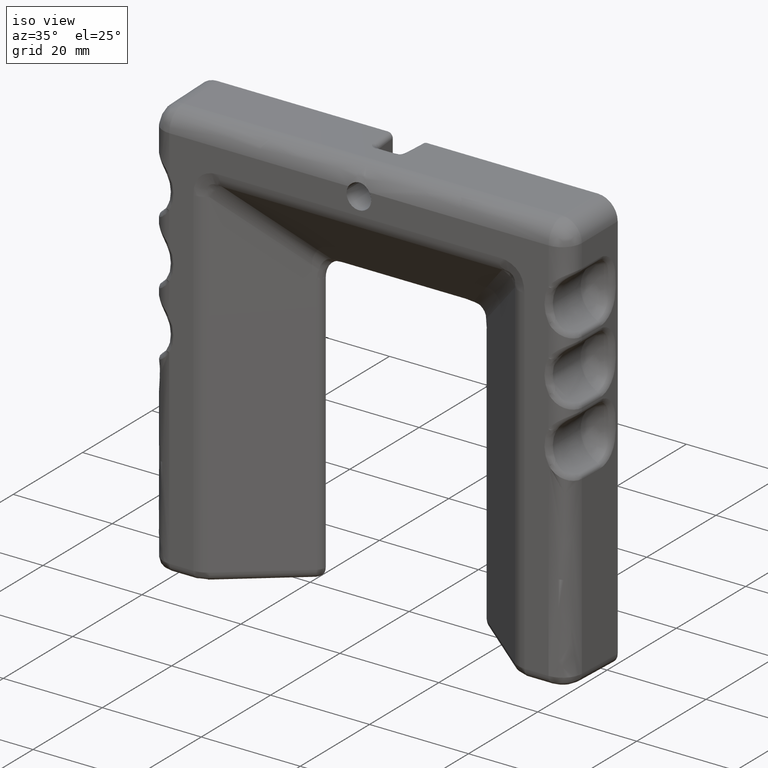
[diagram: clean part render]
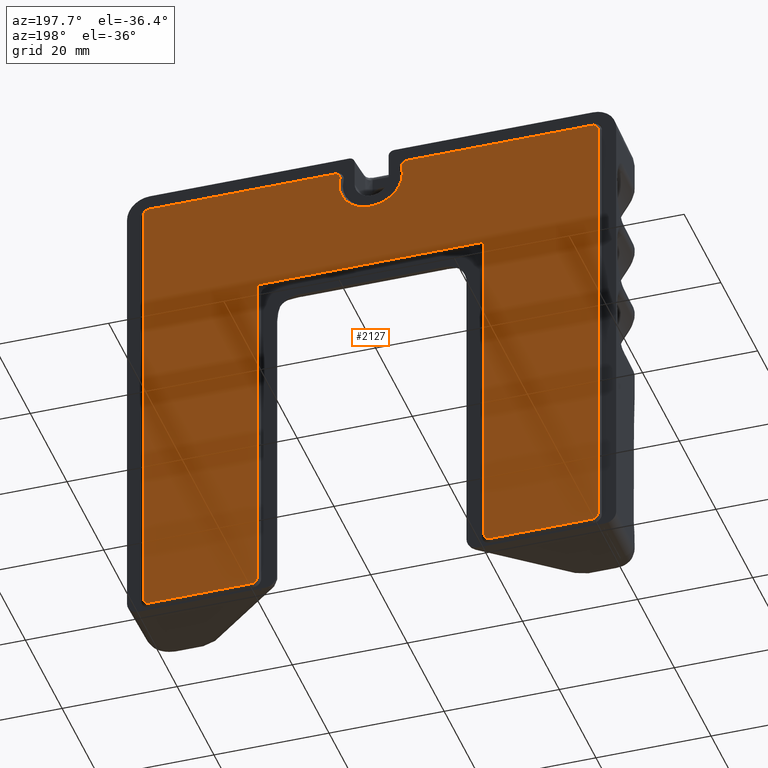
[diagram: tour spotlight — one face highlighted and labeled with its STEP entity id]
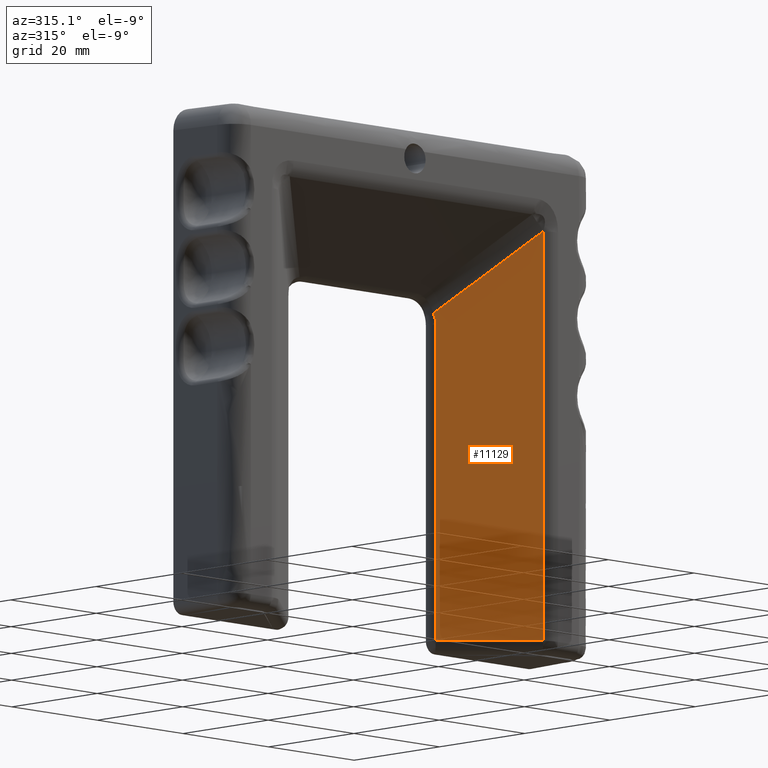
[diagram: tour spotlight — one face highlighted and labeled with its STEP entity id]
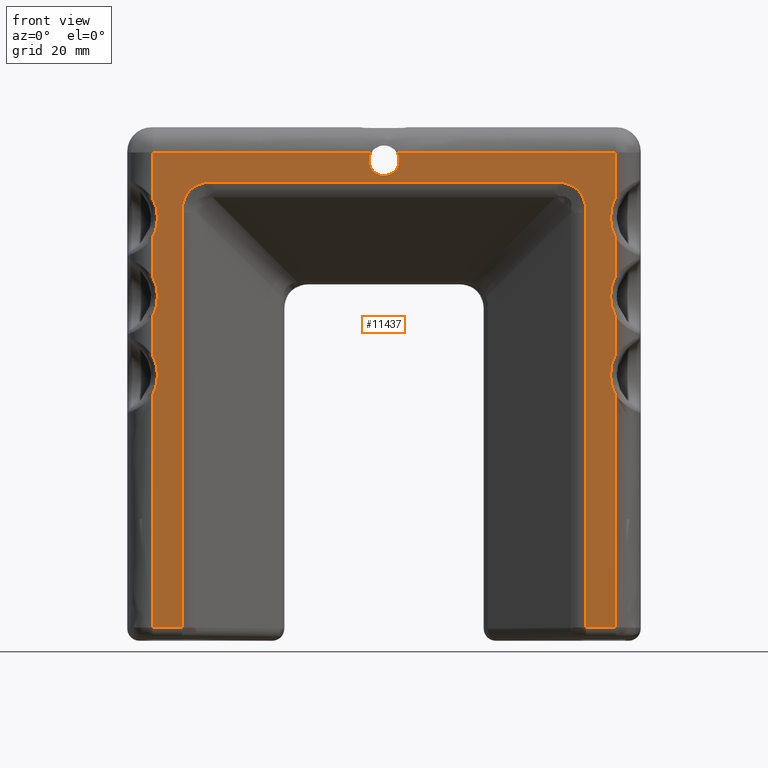
[diagram: tour spotlight — one face highlighted and labeled with its STEP entity id]
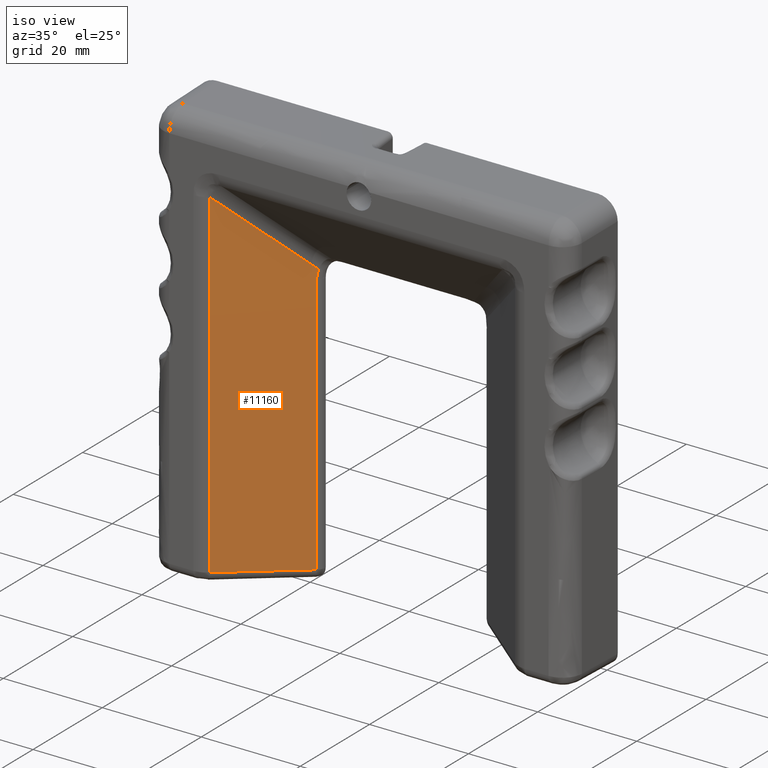
[diagram: tour spotlight — one face highlighted and labeled with its STEP entity id]
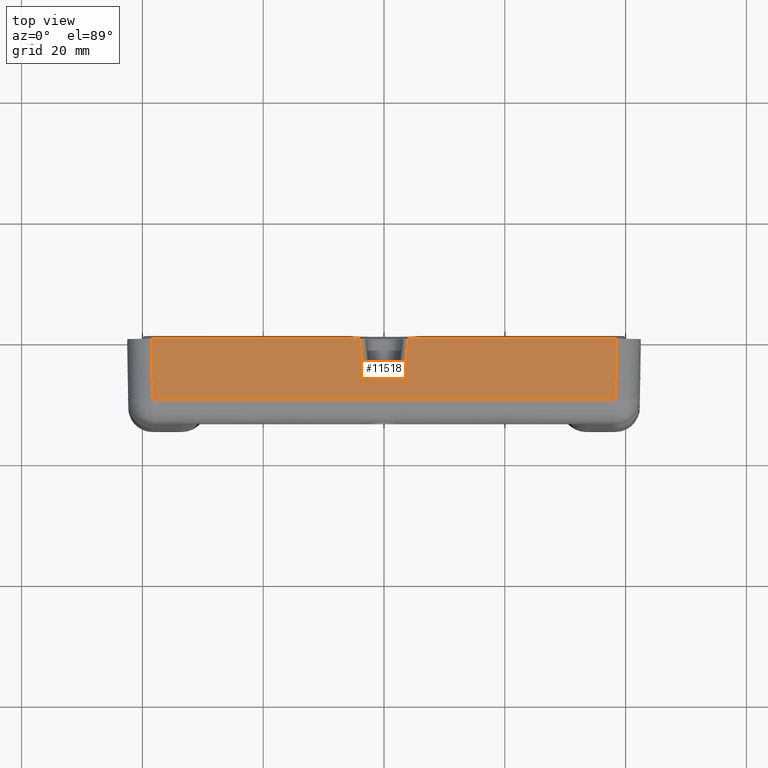
[diagram: tour spotlight — one face highlighted and labeled with its STEP entity id]
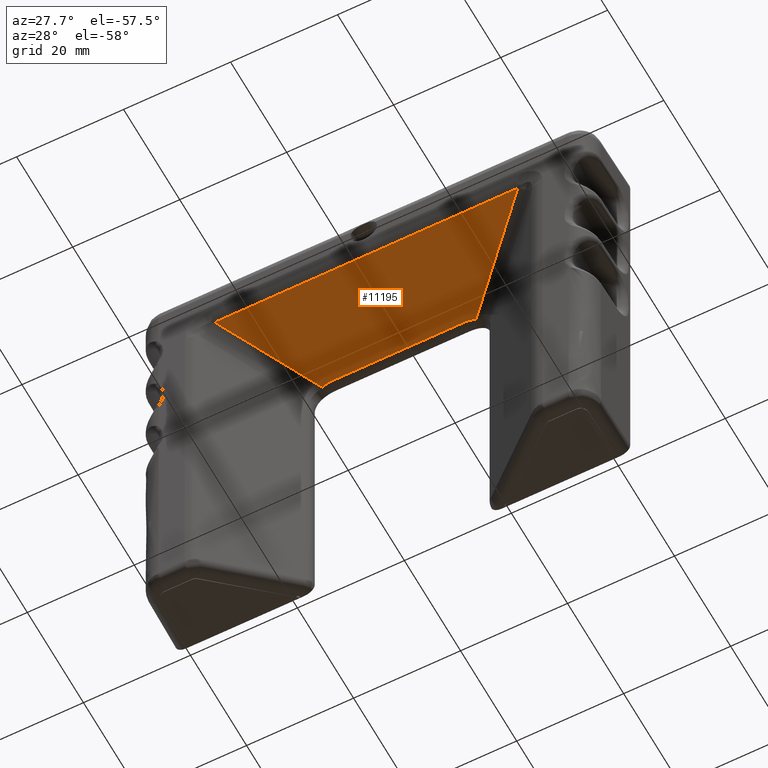
[diagram: tour spotlight — one face highlighted and labeled with its STEP entity id]
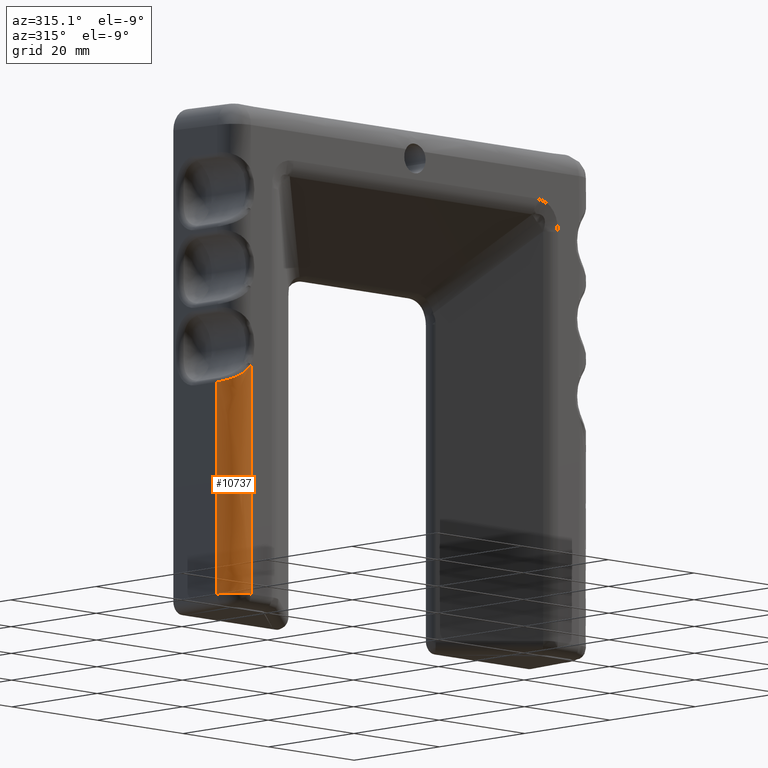
[diagram: tour spotlight — one face highlighted and labeled with its STEP entity id]
A machine part: a face-by-face anatomy tour. The part has 200 B-rep faces; the first image is the clean iso view, then the 7 largest visible faces are spotlighted one at a time (largest first), each with its STEP entity span.

Face 1 — auxiliary view, entity #2127. In plain terms, the highlighted face is a freeform B-spline surface patch.
Definition (entity closure, byte-faithful):
#1211=CARTESIAN_POINT('',(39.499999999949203,0.0,22.000000000103348));
#1212=VERTEX_POINT('',#1211);
#1223=CARTESIAN_POINT('',(38.499999999948997,0.0,23.000000000103348));
#1224=VERTEX_POINT('',#1223);
#1225=CARTESIAN_POINT('',(39.499999999949203,0.0,22.000000000103348));
#1226=CARTESIAN_POINT('',(39.500014327553203,0.0,22.081811047851389));
#1227=CARTESIAN_POINT('',(39.478805086073002,0.0,22.253607922560679));
#1228=CARTESIAN_POINT('',(39.371573700561200,0.0,22.521946860357730));
#1229=CARTESIAN_POINT('',(39.166178575398369,0.0,22.772277948874351));
#1230=CARTESIAN_POINT('',(38.859910467335133,0.0,22.955773641970801));
#1231=CARTESIAN_POINT('',(38.622733893674358,0.0,23.000105429510729));
#1232=CARTESIAN_POINT('',(38.499999999948997,0.0,23.000000000103348));
#1233=B_SPLINE_CURVE_WITH_KNOTS('',3,(#1225,#1226,#1227,#1228,#1229,#1230,#1231,#1232),.UNSPECIFIED.,.F.,.U.,(4,1,1,1,1,4),(0.000000217536349,0.245438941845420,0.515431442445490,0.859040607081495,1.202673225400131,1.570835744369436),.UNSPECIFIED.);
#1234=EDGE_CURVE('',#1212,#1224,#1233,.T.);
#1267=CARTESIAN_POINT('',(-39.499999999949537,0.0,22.000000000087901));
#1268=VERTEX_POINT('',#1267);
#1280=CARTESIAN_POINT('',(-38.499999999949701,0.0,23.000000000087901));
#1281=VERTEX_POINT('',#1280);
#1292=CARTESIAN_POINT('',(-38.499999999949701,0.0,23.000000000087901));
#1293=CARTESIAN_POINT('',(-38.630919264339461,0.0,23.000133886166161));
#1294=CARTESIAN_POINT('',(-38.851714781281913,0.0,22.955988613835778));
#1295=CARTESIAN_POINT('',(-39.101343153986349,0.0,22.810440243591099));
#1296=CARTESIAN_POINT('',(-39.273989335888608,0.0,22.646046551996371));
#1297=CARTESIAN_POINT('',(-39.443544225472102,0.0,22.392493208022191));
#1298=CARTESIAN_POINT('',(-39.500267898805667,0.0,22.155503843146789));
#1299=CARTESIAN_POINT('',(-39.499999999949537,0.0,22.000000000087901));
#1300=B_SPLINE_CURVE_WITH_KNOTS('',3,(#1292,#1293,#1294,#1295,#1296,#1297,#1298,#1299),.UNSPECIFIED.,.F.,.U.,(4,1,1,1,1,4),(0.000000217531629,0.392709373931819,0.662713451856214,0.859040607080540,1.104490639185552,1.570835744369193),.UNSPECIFIED.);
#1301=EDGE_CURVE('',#1281,#1268,#1300,.T.);
#1356=CARTESIAN_POINT('',(-19.698063139290749,0.0,3.198063139219500));
#1357=VERTEX_POINT('',#1356);
#1438=CARTESIAN_POINT('',(19.698063139290351,0.0,3.198063139219500));
#1439=VERTEX_POINT('',#1438);
#1486=CARTESIAN_POINT('',(-39.499999999949047,0.0,-56.999999999823800));
#1487=VERTEX_POINT('',#1486);
#1488=CARTESIAN_POINT('',(-39.499999999949047,0.0,-56.999999999823800));
#1489=CARTESIAN_POINT('',(-39.499999999949537,0.0,22.000000000087901));
#1490=QUASI_UNIFORM_CURVE('',1,(#1488,#1489),.UNSPECIFIED.,.F.,.U.);
#1491=EDGE_CURVE('',#1487,#1268,#1490,.T.);
#1529=CARTESIAN_POINT('',(-38.499999999949047,0.0,-57.999999999823807));
#1530=VERTEX_POINT('',#1529);
#1543=CARTESIAN_POINT('',(-38.499999999949047,0.0,-57.999999999823807));
#1544=CARTESIAN_POINT('',(-38.606359607924759,0.0,-58.000053413753072));
#1545=CARTESIAN_POINT('',(-38.827234840231753,0.0,-57.964445604183709));
#1546=CARTESIAN_POINT('',(-39.142157155291187,0.0,-57.796242727931272));
#1547=CARTESIAN_POINT('',(-39.349139805231829,0.0,-57.556259526731303));
#1548=CARTESIAN_POINT('',(-39.472305589893530,0.0,-57.278118864626883));
#1549=CARTESIAN_POINT('',(-39.500057954417358,0.0,-57.106363003410983));
#1550=CARTESIAN_POINT('',(-39.499999999949047,0.0,-56.999999999823800));
#1551=B_SPLINE_CURVE_WITH_KNOTS('',3,(#1543,#1544,#1545,#1546,#1547,#1548,#1549,#1550),.UNSPECIFIED.,.F.,.U.,(4,1,1,1,1,4),(0.000000217535812,0.319076578548942,0.662713451858859,1.055400931053086,1.251763114061747,1.570835744369257),.UNSPECIFIED.);
#1552=EDGE_CURVE('',#1530,#1487,#1551,.T.);
#1571=CARTESIAN_POINT('',(-20.698063139289250,0.0,-57.999999999864400));
#1572=VERTEX_POINT('',#1571);
#1585=CARTESIAN_POINT('',(-20.698063139289250,0.0,-57.999999999864400));
#1586=CARTESIAN_POINT('',(-38.499999999949047,0.0,-57.999999999823807));
#1587=QUASI_UNIFORM_CURVE('',1,(#1585,#1586),.UNSPECIFIED.,.F.,.U.);
#1588=EDGE_CURVE('',#1572,#1530,#1587,.T.);
#1610=CARTESIAN_POINT('',(-19.698063139290500,0.0,-56.999999999864400));
#1611=VERTEX_POINT('',#1610);
#1624=CARTESIAN_POINT('',(-19.698063139290500,0.0,-56.999999999864400));
#1625=CARTESIAN_POINT('',(-19.698049178047221,0.0,-57.081810563141431));
#1626=CARTESIAN_POINT('',(-19.720247226471500,0.0,-57.261806225028131));
#1627=CARTESIAN_POINT('',(-19.812027594672230,0.0,-57.483376357675347));
#1628=CARTESIAN_POINT('',(-19.970763278700250,0.0,-57.703027307884312));
#1629=CARTESIAN_POINT('',(-20.169688334946940,0.0,-57.866300081996783));
#1630=CARTESIAN_POINT('',(-20.436283111612539,0.0,-57.976644462458850));
#1631=CARTESIAN_POINT('',(-20.608068520382432,0.0,-58.000026670441052));
#1632=CARTESIAN_POINT('',(-20.698063139289250,0.0,-57.999999999864400));
#1633=B_SPLINE_CURVE_WITH_KNOTS('',3,(#1624,#1625,#1626,#1627,#1628,#1629,#1630,#1631,#1632),.UNSPECIFIED.,.F.,.U.,(4,1,1,1,1,1,4),(0.000000217537419,0.245438941846535,0.539988477027450,0.711792649435928,1.055400931052504,1.300852822237725,1.570835744368399),.UNSPECIFIED.);
#1634=EDGE_CURVE('',#1611,#1572,#1633,.T.);
#1653=CARTESIAN_POINT('',(-19.698063139290749,0.0,3.198063139219500));
#1654=CARTESIAN_POINT('',(-19.698063139290500,0.0,-56.999999999864400));
#1655=QUASI_UNIFORM_CURVE('',1,(#1653,#1654),.UNSPECIFIED.,.F.,.U.);
#1656=EDGE_CURVE('',#1357,#1611,#1655,.T.);
#1678=CARTESIAN_POINT('',(19.698063139290351,0.0,3.198063139219500));
#1679=CARTESIAN_POINT('',(-19.698063139290749,0.0,3.198063139219500));
#1680=QUASI_UNIFORM_CURVE('',1,(#1678,#1679),.UNSPECIFIED.,.F.,.U.);
#1681=EDGE_CURVE('',#1439,#1357,#1680,.T.);
#1705=CARTESIAN_POINT('',(19.698063139290401,0.0,-56.999999999864400));
#1706=VERTEX_POINT('',#1705);
#1707=CARTESIAN_POINT('',(19.698063139290401,0.0,-56.999999999864400));
#1708=CARTESIAN_POINT('',(19.698063139290351,0.0,3.198063139219500));
#1709=QUASI_UNIFORM_CURVE('',1,(#1707,#1708),.UNSPECIFIED.,.F.,.U.);
#1710=EDGE_CURVE('',#1706,#1439,#1709,.T.);
#1742=CARTESIAN_POINT('',(20.698063139290401,0.0,-57.999999999864400));
#1743=VERTEX_POINT('',#1742);
#1756=CARTESIAN_POINT('',(20.698063139290401,0.0,-57.999999999864400));
#1757=CARTESIAN_POINT('',(20.550751410295760,0.0,-58.000234125302612));
#1758=CARTESIAN_POINT('',(20.330065337361180,0.0,-57.950285986211547));
#1759=CARTESIAN_POINT('',(20.070805092839588,0.0,-57.790455778516993));
#1760=CARTESIAN_POINT('',(19.878383732609709,0.0,-57.598159567642277));
#1761=CARTESIAN_POINT('',(19.733609775763458,0.0,-57.327239002624673));
#1762=CARTESIAN_POINT('',(19.698014932644430,0.0,-57.106358039947906));
#1763=CARTESIAN_POINT('',(19.698063139290401,0.0,-56.999999999864400));
#1764=B_SPLINE_CURVE_WITH_KNOTS('',3,(#1756,#1757,#1758,#1759,#1760,#1761,#1762,#1763),.UNSPECIFIED.,.F.,.U.,(4,1,1,1,1,4),(0.000000217534374,0.441800759729257,0.662713451858429,0.908125003005442,1.251763114061433,1.570835744369271),.UNSPECIFIED.);
#1765=EDGE_CURVE('',#1743,#1706,#1764,.T.);
#1784=CARTESIAN_POINT('',(38.499999999947903,0.0,-57.999999999823807));
#1785=VERTEX_POINT('',#1784);
#1798=CARTESIAN_POINT('',(38.499999999947903,0.0,-57.999999999823807));
#1799=CARTESIAN_POINT('',(20.698063139290401,0.0,-57.999999999864400));
#1800=QUASI_UNIFORM_CURVE('',1,(#1798,#1799),.UNSPECIFIED.,.F.,.U.);
#1801=EDGE_CURVE('',#1785,#1743,#1800,.T.);
#1823=CARTESIAN_POINT('',(39.499999999949203,0.0,-56.999999999823800));
#1824=VERTEX_POINT('',#1823);
#1837=CARTESIAN_POINT('',(39.499999999949203,0.0,-56.999999999823800));
#1838=CARTESIAN_POINT('',(39.500146246036302,0.0,-57.130922819918851));
#1839=CARTESIAN_POINT('',(39.455973848660783,0.0,-57.351707529634567));
#1840=CARTESIAN_POINT('',(39.310440721513807,0.0,-57.601339480064880));
#1841=CARTESIAN_POINT('',(39.123407628207353,0.0,-57.797873438428233));
#1842=CARTESIAN_POINT('',(38.859922444539741,0.0,-57.955775563694118));
#1843=CARTESIAN_POINT('',(38.622732273899793,0.0,-58.000104967938121));
#1844=CARTESIAN_POINT('',(38.499999999947903,0.0,-57.999999999823807));
#1845=B_SPLINE_CURVE_WITH_KNOTS('',3,(#1837,#1838,#1839,#1840,#1841,#1842,#1843,#1844),.UNSPECIFIED.,.F.,.U.,(4,1,1,1,1,4),(0.000000217537676,0.392709373936844,0.662713451860106,0.859040607083587,1.202673225401559,1.570835744370094),.UNSPECIFIED.);
#1846=EDGE_CURVE('',#1824,#1785,#1845,.T.);
#1865=CARTESIAN_POINT('',(39.499999999949203,0.0,22.000000000103348));
#1866=CARTESIAN_POINT('',(39.499999999949203,0.0,-56.999999999823800));
#1867=QUASI_UNIFORM_CURVE('',1,(#1865,#1866),.UNSPECIFIED.,.F.,.U.);
#1868=EDGE_CURVE('',#1212,#1824,#1867,.T.);
#1890=CARTESIAN_POINT('',(-6.324555320316181,0.0,23.000000000094200));
#1891=VERTEX_POINT('',#1890);
#1892=CARTESIAN_POINT('',(-38.499999999949701,0.0,23.000000000087901));
#1893=CARTESIAN_POINT('',(-6.324555320316181,0.0,23.000000000094200));
#1894=QUASI_UNIFORM_CURVE('',1,(#1892,#1893),.UNSPECIFIED.,.F.,.U.);
#1895=EDGE_CURVE('',#1281,#1891,#1894,.T.);
#1929=CARTESIAN_POINT('',(-5.351546809498061,0.0,21.769230769311399));
#1930=VERTEX_POINT('',#1929);
#1941=CARTESIAN_POINT('',(-6.324555320316181,0.0,23.000000000094200));
#1942=CARTESIAN_POINT('',(-6.211826171420850,0.0,23.000048425445751));
#1943=CARTESIAN_POINT('',(-5.967590458473361,0.0,22.958335965005070));
#1944=CARTESIAN_POINT('',(-5.646269813299475,0.0,22.767796751177851));
#1945=CARTESIAN_POINT('',(-5.436908595105568,0.0,22.494968295239740));
#1946=CARTESIAN_POINT('',(-5.315279665153033,0.0,22.156252026992689));
#1947=CARTESIAN_POINT('',(-5.316583850338386,0.0,21.915480141732079));
#1948=CARTESIAN_POINT('',(-5.351546809498061,0.0,21.769230769311399));
#1949=B_SPLINE_CURVE_WITH_KNOTS('',3,(#1941,#1942,#1943,#1944,#1945,#1946,#1947,#1948),.UNSPECIFIED.,.F.,.U.,(4,1,1,1,1,4),(0.000000280677304,0.338189973946883,0.732789879649531,1.099135193399012,1.352793226430628,1.803724176426685),.UNSPECIFIED.);
#1950=EDGE_CURVE('',#1891,#1930,#1949,.T.);
#1980=CARTESIAN_POINT('',(5.351546809497520,0.0,21.769230769313548));
#1981=VERTEX_POINT('',#1980);
#1992=CARTESIAN_POINT('',(-4.243461E-009,0.0,15.000000000006150));
#1993=VERTEX_POINT('',#1992);
#1994=CARTESIAN_POINT('',(-4.243461E-009,0.0,15.000000000006150));
#1995=CARTESIAN_POINT('',(0.542549153159478,0.0,14.999736168811859));
#1996=CARTESIAN_POINT('',(1.317388490094675,0.0,15.115649750206529));
#1997=CARTESIAN_POINT('',(2.407884364797114,0.0,15.525280062039080));
#1998=CARTESIAN_POINT('',(3.148233418671422,0.0,15.957487955651720));
#1999=CARTESIAN_POINT('',(3.921975145714269,0.0,16.605960269699938));
#2000=CARTESIAN_POINT('',(4.645303538656455,0.0,17.457207586629291));
#2001=CARTESIAN_POINT('',(5.229325760176251,0.0,18.622336969050089));
#2002=CARTESIAN_POINT('',(5.465415905184914,0.0,19.688450491311809));
#2003=CARTESIAN_POINT('',(5.523296121511068,0.0,20.721451038629120));
#2004=CARTESIAN_POINT('',(5.453011017315941,0.0,21.341925091128591));
#2005=CARTESIAN_POINT('',(5.351546809497520,0.0,21.769230769313548));
#2006=B_SPLINE_CURVE_WITH_KNOTS('',3,(#1994,#1995,#1996,#1997,#1998,#1999,#2000,#2001,#2002,#2003,#2004,#2005),.UNSPECIFIED.,.F.,.U.,(4,1,1,1,1,1,1,1,1,4),(0.000000107662045,1.627535778394842,2.325053548120486,3.487601396353792,4.185127801099133,5.347605900044380,6.820151009355872,8.060204311036515,8.602708020712424,9.920236848795172),.UNSPECIFIED.);
#2007=EDGE_CURVE('',#1993,#1981,#2006,.T.);
#2009=CARTESIAN_POINT('',(-5.351546809498061,0.0,21.769230769311399));
#2010=CARTESIAN_POINT('',(-5.459005049810857,0.0,21.316793788603039));
#2011=CARTESIAN_POINT('',(-5.527673852305521,0.0,20.669413160075980));
#2012=CARTESIAN_POINT('',(-5.455243069737300,0.0,19.637328692886161));
#2013=CARTESIAN_POINT('',(-5.217615207534649,0.0,18.599031861151261));
#2014=CARTESIAN_POINT('',(-4.703723141303765,0.0,17.573730978173462));
#2015=CARTESIAN_POINT('',(-4.093238389735405,0.0,16.801828834717849));
#2016=CARTESIAN_POINT('',(-3.497438440928780,0.0,16.226363557895748));
#2017=CARTESIAN_POINT('',(-2.860848377791266,0.0,15.778642565720141));
#2018=CARTESIAN_POINT('',(-2.074502910940098,0.0,15.384122693657480));
#2019=CARTESIAN_POINT('',(-1.162488683740107,0.0,15.084847439245779));
#2020=CARTESIAN_POINT('',(-0.413338829841092,0.0,14.999931016622529));
#2021=CARTESIAN_POINT('',(-4.243461E-009,0.0,15.000000000006150));
#2022=B_SPLINE_CURVE_WITH_KNOTS('',3,(#2009,#2010,#2011,#2012,#2013,#2014,#2015,#2016,#2017,#2018,#2019,#2020,#2021),.UNSPECIFIED.,.F.,.U.,(4,1,1,1,1,1,1,1,1,1,4),(0.000000107662730,1.395014002534065,1.937538343063287,3.100084990349409,4.572632568355017,5.347605895469305,6.045117706993319,7.052668109039573,7.672687751570344,8.680220535127720,9.920236840305801),.UNSPECIFIED.);
#2023=EDGE_CURVE('',#1930,#1993,#2022,.T.);
#2048=CARTESIAN_POINT('',(6.324555320315071,0.0,23.000000000096900));
#2049=VERTEX_POINT('',#2048);
#2060=CARTESIAN_POINT('',(5.351546809497520,0.0,21.769230769313548));
#2061=CARTESIAN_POINT('',(5.325469654651167,0.0,21.878901524186460));
#2062=CARTESIAN_POINT('',(5.309734041300523,0.0,22.126189211225419));
#2063=CARTESIAN_POINT('',(5.418104893513546,0.0,22.473612972730368));
#2064=CARTESIAN_POINT('',(5.642764280626313,0.0,22.757662511551739));
#2065=CARTESIAN_POINT('',(5.948890045862477,0.0,22.951104911427439));
#2066=CARTESIAN_POINT('',(6.193013509761522,0.0,23.000137731472019));
#2067=CARTESIAN_POINT('',(6.324555320315071,0.0,23.000000000096900));
#2068=B_SPLINE_CURVE_WITH_KNOTS('',3,(#2060,#2061,#2062,#2063,#2064,#2065,#2066,#2067),.UNSPECIFIED.,.F.,.U.,(4,1,1,1,1,4),(0.000000280677316,0.338189973947018,0.732789879649797,1.070935543096898,1.409161141713209,1.803724176426559),.UNSPECIFIED.);
#2069=EDGE_CURVE('',#1981,#2049,#2068,.T.);
#2092=CARTESIAN_POINT('',(6.324555320315071,0.0,23.000000000096900));
#2093=CARTESIAN_POINT('',(38.499999999948997,0.0,23.000000000103348));
#2094=QUASI_UNIFORM_CURVE('',1,(#2092,#2093),.UNSPECIFIED.,.F.,.U.);
#2095=EDGE_CURVE('',#2049,#1224,#2094,.T.);
#2101=CARTESIAN_POINT('',(-43.446049846827158,0.0,27.045949843108019));
#2102=CARTESIAN_POINT('',(43.446051965771943,0.0,27.045949843108019));
#2103=CARTESIAN_POINT('',(-43.446049846827158,0.0,-62.045952015458369));
#2104=CARTESIAN_POINT('',(43.446051965771943,0.0,-62.045952015458369));
#2105=B_SPLINE_SURFACE_WITH_KNOTS('',1,1,((#2101,#2103),(#2102,#2104)),.UNSPECIFIED.,.F.,.F.,.U.,(2,2),(2,2),(0.0,86.892101812599094),(0.0,89.091901858566388),.UNSPECIFIED.);
#2106=ORIENTED_EDGE('',*,*,#1301,.F.);
#2107=ORIENTED_EDGE('',*,*,#1895,.T.);
#2108=ORIENTED_EDGE('',*,*,#1950,.T.);
#2109=ORIENTED_EDGE('',*,*,#2023,.T.);
#2110=ORIENTED_EDGE('',*,*,#2007,.T.);
#2111=ORIENTED_EDGE('',*,*,#2069,.T.);
#2112=ORIENTED_EDGE('',*,*,#2095,.T.);
#2113=ORIENTED_EDGE('',*,*,#1234,.F.);
#2114=ORIENTED_EDGE('',*,*,#1868,.T.);
#2115=ORIENTED_EDGE('',*,*,#1846,.T.);
#2116=ORIENTED_EDGE('',*,*,#1801,.T.);
#2117=ORIENTED_EDGE('',*,*,#1765,.T.);
#2118=ORIENTED_EDGE('',*,*,#1710,.T.);
#2119=ORIENTED_EDGE('',*,*,#1681,.T.);
#2120=ORIENTED_EDGE('',*,*,#1656,.T.);
#2121=ORIENTED_EDGE('',*,*,#1634,.T.);
#2122=ORIENTED_EDGE('',*,*,#1588,.T.);
#2123=ORIENTED_EDGE('',*,*,#1552,.T.);
#2124=ORIENTED_EDGE('',*,*,#1491,.T.);
#2125=EDGE_LOOP('',(#2106,#2107,#2108,#2109,#2110,#2111,#2112,#2113,#2114,#2115,#2116,#2117,#2118,#2119,#2120,#2121,#2122,#2123,#2124));
#2126=FACE_OUTER_BOUND('',#2125,.T.);
#2127=ADVANCED_FACE('',(#2126),#2105,.T.);

Face 2 — auxiliary view, entity #11129. In plain terms, the highlighted face is a freeform B-spline surface patch.
Definition (entity closure, byte-faithful):
#10139=CARTESIAN_POINT('',(16.921956825164450,-1.853899272678195,-2.148492222790370));
#10140=VERTEX_POINT('',#10139);
#10154=CARTESIAN_POINT('',(30.884913513432998,-13.564766172503820,11.814464465478320));
#10155=VERTEX_POINT('',#10154);
#10156=CARTESIAN_POINT('',(30.884913513432998,-13.564766172503820,11.814464465478320));
#10157=CARTESIAN_POINT('',(16.921956825164450,-1.853899272678195,-2.148492222790370));
#10158=QUASI_UNIFORM_CURVE('',1,(#10156,#10157),.UNSPECIFIED.,.F.,.U.);
#10159=EDGE_CURVE('',#10155,#10140,#10158,.T.);
#10362=CARTESIAN_POINT('',(30.884913513432998,-13.564766172503820,-56.798396848276703));
#10363=VERTEX_POINT('',#10362);
#10364=CARTESIAN_POINT('',(30.884913513432998,-13.564766172503820,-56.798396848276703));
#10365=CARTESIAN_POINT('',(30.884913513432998,-13.564766172503820,11.814464465478320));
#10366=QUASI_UNIFORM_CURVE('',1,(#10364,#10365),.UNSPECIFIED.,.F.,.U.);
#10367=EDGE_CURVE('',#10363,#10155,#10366,.T.);
#11098=CARTESIAN_POINT('',(16.224507165648340,-1.268941493729852,-60.435732644510367));
#11099=CARTESIAN_POINT('',(31.582363547464769,-14.149724265562121,-60.435732644510367));
#11100=CARTESIAN_POINT('',(16.224507165648340,-1.268941493729852,15.251674951856071));
#11101=CARTESIAN_POINT('',(31.582363547464769,-14.149724265562121,15.251674951856071));
#11102=B_SPLINE_SURFACE_WITH_KNOTS('',1,1,((#11098,#11100),(#11099,#11101)),.UNSPECIFIED.,.F.,.F.,.U.,(2,2),(2,2),(0.0,20.044408633322920),(0.0,75.687407596366427),.UNSPECIFIED.);
#11103=CARTESIAN_POINT('',(17.214775476115900,-2.099489108959800,-4.0));
#11104=VERTEX_POINT('',#11103);
#11105=CARTESIAN_POINT('',(16.921956825164450,-1.853899272678195,-2.148492222790370));
#11106=CARTESIAN_POINT('',(17.011663208738369,-1.929136884707846,-2.421875494973927));
#11107=CARTESIAN_POINT('',(17.160723831090831,-2.054155471196926,-3.028712454710562));
#11108=CARTESIAN_POINT('',(17.214156632368919,-2.098970078720351,-3.662951840588014));
#11109=CARTESIAN_POINT('',(17.214775476115900,-2.099489108959800,-4.0));
#11110=B_SPLINE_CURVE_WITH_KNOTS('',3,(#11105,#11106,#11107,#11108,#11109),.UNSPECIFIED.,.F.,.U.,(4,1,4),(7.351955E-009,0.892198098956894,1.903339642938170),.UNSPECIFIED.);
#11111=EDGE_CURVE('',#10140,#11104,#11110,.T.);
#11112=ORIENTED_EDGE('',*,*,#11111,.T.);
#11113=CARTESIAN_POINT('',(17.214775476115900,-2.099489108959805,-56.998524003840807));
#11114=VERTEX_POINT('',#11113);
#11115=CARTESIAN_POINT('',(17.214775476115900,-2.099489108959800,-4.0));
#11116=CARTESIAN_POINT('',(17.214775476115900,-2.099489108959805,-56.998524003840807));
#11117=QUASI_UNIFORM_CURVE('',1,(#11115,#11116),.UNSPECIFIED.,.F.,.U.);
#11118=EDGE_CURVE('',#11104,#11114,#11117,.T.);
#11119=ORIENTED_EDGE('',*,*,#11118,.T.);
#11120=CARTESIAN_POINT('',(17.214775476115900,-2.099489108959805,-56.998524003840807));
#11121=CARTESIAN_POINT('',(30.884913513432998,-13.564766172503820,-56.798396848276703));
#11122=QUASI_UNIFORM_CURVE('',1,(#11120,#11121),.UNSPECIFIED.,.F.,.U.);
#11123=EDGE_CURVE('',#11114,#10363,#11122,.T.);
#11124=ORIENTED_EDGE('',*,*,#11123,.T.);
#11125=ORIENTED_EDGE('',*,*,#10367,.T.);
#11126=ORIENTED_EDGE('',*,*,#10159,.T.);
#11127=EDGE_LOOP('',(#11112,#11119,#11124,#11125,#11126));
#11128=FACE_OUTER_BOUND('',#11127,.T.);
#11129=ADVANCED_FACE('',(#11128),#11102,.T.);

Face 3 — front view, entity #11437. In plain terms, the highlighted face is a freeform B-spline surface patch.
Definition (entity closure, byte-faithful):
#2148=CARTESIAN_POINT('',(-2.120094071557265,-14.499999999999179,21.824840038557149));
#2149=VERTEX_POINT('',#2148);
#2150=CARTESIAN_POINT('',(-2.440729352231159,-14.500000000000179,21.041147141879119));
#2151=VERTEX_POINT('',#2150);
#2152=CARTESIAN_POINT('',(-2.120094071557265,-14.499999999999179,21.824840038557149));
#2153=CARTESIAN_POINT('',(-2.270518364014504,-14.499999999999490,21.584377952822891));
#2154=CARTESIAN_POINT('',(-2.379427741991659,-14.499999999999870,21.318071767937571));
#2155=CARTESIAN_POINT('',(-2.440729352231159,-14.500000000000179,21.041147141879119));
#2156=B_SPLINE_CURVE_WITH_KNOTS('',3,(#2152,#2153,#2154,#2155),.UNSPECIFIED.,.F.,.U.,(4,4),(6.564743E-009,0.850864154771116),.UNSPECIFIED.);
#2157=EDGE_CURVE('',#2149,#2151,#2156,.T.);
#2220=CARTESIAN_POINT('',(2.440729312936336,-14.499999999999270,19.958852680902321));
#2221=VERTEX_POINT('',#2220);
#2227=CARTESIAN_POINT('',(2.120094071557220,-14.499999999999259,21.824840038557149));
#2228=VERTEX_POINT('',#2227);
#2229=CARTESIAN_POINT('',(2.440729312936336,-14.499999999999270,19.958852680902321));
#2230=CARTESIAN_POINT('',(2.506669392403729,-14.499999999999281,20.255053512313459));
#2231=CARTESIAN_POINT('',(2.521878366155275,-14.499999999999289,20.686555775981532));
#2232=CARTESIAN_POINT('',(2.380990301773809,-14.499999999999250,21.320085644310190));
#2233=CARTESIAN_POINT('',(2.238075635040961,-14.499999999999281,21.636185841352962));
#2234=CARTESIAN_POINT('',(2.120094071557220,-14.499999999999259,21.824840038557149));
#2235=B_SPLINE_CURVE_WITH_KNOTS('',3,(#2229,#2230,#2231,#2232,#2233,#2234),.UNSPECIFIED.,.F.,.U.,(4,1,1,4),(0.000000025826808,0.910234650108613,1.274316033798662,1.941825286214876),.UNSPECIFIED.);
#2236=EDGE_CURVE('',#2221,#2228,#2235,.T.);
#2296=CARTESIAN_POINT('',(-0.000000038150194,-14.499999999999179,18.000000000006150));
#2297=VERTEX_POINT('',#2296);
#2298=CARTESIAN_POINT('',(-2.440729352231159,-14.500000000000179,21.041147141879119));
#2299=CARTESIAN_POINT('',(-2.501400727935301,-14.500000000000229,20.768262526627431));
#2300=CARTESIAN_POINT('',(-2.526151639254186,-14.500000000000229,20.272816592479430));
#2301=CARTESIAN_POINT('',(-2.362244527833370,-14.500000000000121,19.611926685680331));
#2302=CARTESIAN_POINT('',(-2.064249580611014,-14.500000000000020,19.040321992712780));
#2303=CARTESIAN_POINT('',(-1.643899068603165,-14.499999999999901,18.579235160076529));
#2304=CARTESIAN_POINT('',(-1.102232852297910,-14.499999999999430,18.229750810021979));
#2305=CARTESIAN_POINT('',(-0.559048377555134,-14.499999999999870,18.040416603641749));
#2306=CARTESIAN_POINT('',(-0.174698016174856,-14.499999999999320,17.999984929908120));
#2307=CARTESIAN_POINT('',(-0.000000038150194,-14.499999999999179,18.000000000006150));
#2308=B_SPLINE_CURVE_WITH_KNOTS('',3,(#2298,#2299,#2300,#2301,#2302,#2303,#2304,#2305,#2306,#2307),.UNSPECIFIED.,.F.,.U.,(4,1,1,1,1,1,1,4),(0.000000177267074,0.838589058923010,1.467544970531041,2.026631960704683,2.760344862816102,3.319427215000527,3.948392987636224,4.472491844759690),.UNSPECIFIED.);
#2309=EDGE_CURVE('',#2151,#2297,#2308,.T.);
#2311=CARTESIAN_POINT('',(-0.000000038150194,-14.499999999999179,18.000000000006150));
#2312=CARTESIAN_POINT('',(0.193730905306583,-14.499999999999190,17.999974434500690));
#2313=CARTESIAN_POINT('',(0.616434418652227,-14.499999999999210,18.049319567074502));
#2314=CARTESIAN_POINT('',(1.163433773060862,-14.499999999999220,18.261406628624808));
#2315=CARTESIAN_POINT('',(1.688289328572304,-14.499999999999330,18.622254813075191));
#2316=CARTESIAN_POINT('',(2.160857024310872,-14.499999999999091,19.155129301857659));
#2317=CARTESIAN_POINT('',(2.376136391304419,-14.499999999999231,19.666461007755490));
#2318=CARTESIAN_POINT('',(2.440729312936336,-14.499999999999270,19.958852680902321));
#2319=B_SPLINE_CURVE_WITH_KNOTS('',3,(#2311,#2312,#2313,#2314,#2315,#2316,#2317,#2318),.UNSPECIFIED.,.F.,.U.,(4,1,1,1,1,4),(0.000000085418228,0.581210409623226,1.268099421292803,1.743616806165720,2.483352263343006,3.381588930817704),.UNSPECIFIED.);
#2320=EDGE_CURVE('',#2297,#2221,#2319,.T.);
#5139=CARTESIAN_POINT('',(38.324840038503353,-14.499999999999259,14.296573895380160));
#5140=VERTEX_POINT('',#5139);
#5249=CARTESIAN_POINT('',(38.324840038503353,-14.499999999999259,7.703426103730160));
#5250=VERTEX_POINT('',#5249);
#5264=CARTESIAN_POINT('',(38.324840038503353,-14.499999999999259,7.703426103730160));
#5265=CARTESIAN_POINT('',(38.038427177145437,-14.499999999999250,8.239569419655252));
#5266=CARTESIAN_POINT('',(37.619342061120733,-14.499999999999259,9.353287344222713));
#5267=CARTESIAN_POINT('',(37.445808366677632,-14.499999999999289,10.965054846598800));
#5268=CARTESIAN_POINT('',(37.626522934780468,-14.499999999999270,12.642992042879140));
#5269=CARTESIAN_POINT('',(38.004623369947339,-14.499999999999281,13.697386452039201));
#5270=CARTESIAN_POINT('',(38.324840038503353,-14.499999999999259,14.296573895380160));
#5271=B_SPLINE_CURVE_WITH_KNOTS('',3,(#5264,#5265,#5266,#5267,#5268,#5269,#5270),.UNSPECIFIED.,.F.,.U.,(4,1,1,1,4),(9.759930E-009,1.823525708499233,3.539784280846940,4.826979443148792,6.865037815371405),.UNSPECIFIED.);
#5272=EDGE_CURVE('',#5250,#5140,#5271,.T.);
#5632=CARTESIAN_POINT('',(38.324840038503353,-14.499999999999259,1.296573895380970));
#5633=VERTEX_POINT('',#5632);
#5705=CARTESIAN_POINT('',(38.324840038503353,-14.499999999999259,-5.296573896269040));
#5706=VERTEX_POINT('',#5705);
#5719=CARTESIAN_POINT('',(38.324840038503353,-14.499999999999259,-5.296573896269040));
#5720=CARTESIAN_POINT('',(38.038405626269707,-14.499999999999270,-4.760436069416929));
#5721=CARTESIAN_POINT('',(37.670244013162318,-14.499999999999231,-3.781693999583320));
#5722=CARTESIAN_POINT('',(37.457971821259662,-14.499999999999311,-2.252364062843530));
#5723=CARTESIAN_POINT('',(37.532862684589077,-14.499999999999250,-1.031993592761771));
#5724=CARTESIAN_POINT('',(37.818580818475652,-14.499999999999281,0.188812713181427));
#5725=CARTESIAN_POINT('',(38.105884634459912,-14.499999999999250,0.886553258423889));
#5726=CARTESIAN_POINT('',(38.324840038503353,-14.499999999999259,1.296573895380970));
#5727=B_SPLINE_CURVE_WITH_KNOTS('',3,(#5719,#5720,#5721,#5722,#5723,#5724,#5725,#5726),.UNSPECIFIED.,.F.,.U.,(4,1,1,1,1,4),(9.760099E-009,1.823525708499283,3.110722037296486,4.612446580856379,5.470577284788320,6.865037815371418),.UNSPECIFIED.);
#5728=EDGE_CURVE('',#5706,#5633,#5727,.T.);
#7005=CARTESIAN_POINT('',(38.324840038503353,-14.499999999999259,-11.703426104619860));
#7006=VERTEX_POINT('',#7005);
#7115=CARTESIAN_POINT('',(38.324840038503353,-14.499999999999259,-18.296573896269901));
#7116=VERTEX_POINT('',#7115);
#7130=CARTESIAN_POINT('',(38.324840038503353,-14.499999999999259,-18.296573896269901));
#7131=CARTESIAN_POINT('',(38.105880071832942,-14.499999999999250,-17.886553891125381));
#7132=CARTESIAN_POINT('',(37.818581247469751,-14.499999999999281,-17.188812322883692));
#7133=CARTESIAN_POINT('',(37.565568746577178,-14.499999999999250,-16.107522643164430));
#7134=CARTESIAN_POINT('',(37.466762593669650,-14.499999999999250,-15.036261880454511));
#7135=CARTESIAN_POINT('',(37.549228528555624,-14.499999999999250,-13.962237323648971));
#7136=CARTESIAN_POINT('',(37.818573221362051,-14.499999999999281,-12.811186047926860));
#7137=CARTESIAN_POINT('',(38.105884264774012,-14.499999999999250,-12.113446926997470));
#7138=CARTESIAN_POINT('',(38.324840038503353,-14.499999999999259,-11.703426104619860));
#7139=B_SPLINE_CURVE_WITH_KNOTS('',3,(#7130,#7131,#7132,#7133,#7134,#7135,#7136,#7137,#7138),.UNSPECIFIED.,.F.,.U.,(4,1,1,1,1,1,4),(9.761676E-009,1.394460540344373,2.252591244276101,3.325253544285148,4.612446580856698,5.470577284788496,6.865037815371446),.UNSPECIFIED.);
#7140=EDGE_CURVE('',#7116,#7006,#7139,.T.);
#7501=CARTESIAN_POINT('',(-38.324840038437053,-14.499999999999259,7.703426103830350));
#7502=VERTEX_POINT('',#7501);
#7576=CARTESIAN_POINT('',(-38.324840038437053,-14.499999999999259,14.296573895232020));
#7577=VERTEX_POINT('',#7576);
#7590=CARTESIAN_POINT('',(-38.324840038437053,-14.499999999999259,14.296573895232020));
#7591=CARTESIAN_POINT('',(-38.105884437018680,-14.499999999999270,13.886553316115160));
#7592=CARTESIAN_POINT('',(-37.818581071367859,-14.499999999999259,13.188812938068050));
#7593=CARTESIAN_POINT('',(-37.532875193067170,-14.499999999999250,11.968007646171190));
#7594=CARTESIAN_POINT('',(-37.449072764619750,-14.499999999999311,10.604047651218851));
#7595=CARTESIAN_POINT('',(-37.708964880863810,-14.499999999999250,9.076959748134277));
#7596=CARTESIAN_POINT('',(-38.105909649571998,-14.499999999999250,8.113450884663115));
#7597=CARTESIAN_POINT('',(-38.324840038437053,-14.499999999999259,7.703426103830350));
#7598=B_SPLINE_CURVE_WITH_KNOTS('',3,(#7590,#7591,#7592,#7593,#7594,#7595,#7596,#7597),.UNSPECIFIED.,.F.,.U.,(4,1,1,1,1,4),(9.761509E-009,1.394460540286977,2.252591244183507,3.754315787681429,5.470577284564165,6.865037815089892),.UNSPECIFIED.);
#7599=EDGE_CURVE('',#7577,#7502,#7598,.T.);
#8910=CARTESIAN_POINT('',(-38.324840038437053,-14.499999999999259,-5.296573896168559));
#8911=VERTEX_POINT('',#8910);
#9095=CARTESIAN_POINT('',(-38.324840038437053,-14.499999999999259,1.296573895232820));
#9096=VERTEX_POINT('',#9095);
#9168=CARTESIAN_POINT('',(-38.324840038437053,-14.499999999999259,1.296573895232820));
#9169=CARTESIAN_POINT('',(-38.038427224964742,-14.499999999999281,0.760432269937283));
#9170=CARTESIAN_POINT('',(-37.644796943084820,-14.499999999999231,-0.285797393049973));
#9171=CARTESIAN_POINT('',(-37.438068908274587,-14.499999999999281,-1.963299550246381));
#9172=CARTESIAN_POINT('',(-37.619349126935759,-14.499999999999259,-3.646716980022377));
#9173=CARTESIAN_POINT('',(-38.038425655438509,-14.499999999999250,-4.760429810719289));
#9174=CARTESIAN_POINT('',(-38.324840038437053,-14.499999999999259,-5.296573896168559));
#9175=B_SPLINE_CURVE_WITH_KNOTS('',3,(#9168,#9169,#9170,#9171,#9172,#9173,#9174),.UNSPECIFIED.,.F.,.U.,(4,1,1,1,4),(9.761161E-009,1.823525708425319,3.325253544148503,5.041512116425458,6.865037815089612),.UNSPECIFIED.);
#9176=EDGE_CURVE('',#9096,#8911,#9175,.T.);
#9843=CARTESIAN_POINT('',(-38.324840038437053,-14.499999999999259,-18.296573896169701));
#9844=VERTEX_POINT('',#9843);
#10028=CARTESIAN_POINT('',(-38.324840038437053,-14.499999999999259,-11.703426104768001));
#10029=VERTEX_POINT('',#10028);
#10101=CARTESIAN_POINT('',(-38.324840038437053,-14.499999999999259,-11.703426104768001));
#10102=CARTESIAN_POINT('',(-38.038434970578550,-14.499999999999259,-12.239573850482721));
#10103=CARTESIAN_POINT('',(-37.619347899206730,-14.499999999999250,-13.353283930270729));
#10104=CARTESIAN_POINT('',(-37.445806207523248,-14.499999999999281,-14.965057036815640));
#10105=CARTESIAN_POINT('',(-37.626517772130889,-14.499999999999201,-16.642989316881131));
#10106=CARTESIAN_POINT('',(-38.004626088423443,-14.499999999999270,-17.697388238792939));
#10107=CARTESIAN_POINT('',(-38.324840038437053,-14.499999999999259,-18.296573896169701));
#10108=B_SPLINE_CURVE_WITH_KNOTS('',3,(#10101,#10102,#10103,#10104,#10105,#10106,#10107),.UNSPECIFIED.,.F.,.U.,(4,1,1,1,4),(9.760302E-009,1.823525708424601,3.539784280701964,4.826979442951027,6.865037815089934),.UNSPECIFIED.);
#10109=EDGE_CURVE('',#10029,#9844,#10108,.T.);
#10311=CARTESIAN_POINT('',(33.455362561337303,-14.499999999999259,11.814464465478320));
#10312=VERTEX_POINT('',#10311);
#10313=CARTESIAN_POINT('',(28.314464465528751,-14.499999999999259,16.955362561286950));
#10314=VERTEX_POINT('',#10313);
#10315=CARTESIAN_POINT('',(33.455362561337303,-14.499999999999300,11.814464465478309));
#10316=CARTESIAN_POINT('',(33.455362561337317,-14.499999999999298,16.955362561286854));
#10317=CARTESIAN_POINT('',(28.314464465528818,-14.499999999999300,16.955362561286879));
#10325=(BOUNDED_CURVE()B_SPLINE_CURVE(2,(#10315,#10316,#10317),.UNSPECIFIED.,.F.,.U.)CURVE()GEOMETRIC_REPRESENTATION_ITEM()QUASI_UNIFORM_CURVE()RATIONAL_B_SPLINE_CURVE((1.0,0.890800056342052,1.0))REPRESENTATION_ITEM(''));
#10326=EDGE_CURVE('',#10312,#10314,#10325,.T.);
#10369=CARTESIAN_POINT('',(33.455362561337303,-14.499999999999259,-56.790234564685598));
#10370=VERTEX_POINT('',#10369);
#10380=CARTESIAN_POINT('',(33.455362561337303,-14.499999999999259,11.814464465478320));
#10381=CARTESIAN_POINT('',(33.455362561337303,-14.499999999999259,-56.790234564685598));
#10382=QUASI_UNIFORM_CURVE('',1,(#10380,#10381),.UNSPECIFIED.,.F.,.U.);
#10383=EDGE_CURVE('',#10312,#10370,#10382,.T.);
#10403=CARTESIAN_POINT('',(-28.314464465462549,-14.499999999999259,16.955362561286950));
#10404=VERTEX_POINT('',#10403);
#10422=CARTESIAN_POINT('',(-28.314464465462549,-14.499999999999259,16.955362561286950));
#10423=CARTESIAN_POINT('',(28.314464465528751,-14.499999999999259,16.955362561286950));
#10424=QUASI_UNIFORM_CURVE('',1,(#10422,#10423),.UNSPECIFIED.,.F.,.U.);
#10425=EDGE_CURVE('',#10404,#10314,#10424,.T.);
#10564=CARTESIAN_POINT('',(-33.455362561270952,-14.499999999999259,11.814464465478361));
#10565=VERTEX_POINT('',#10564);
#10591=CARTESIAN_POINT('',(-28.314464465462510,-14.499999999999300,16.955362561286989));
#10592=CARTESIAN_POINT('',(-33.455362561271059,-14.499999999999300,16.955362561287036));
#10593=CARTESIAN_POINT('',(-33.455362561271102,-14.499999999999300,11.814464465478510));
#10601=(BOUNDED_CURVE()B_SPLINE_CURVE(2,(#10591,#10592,#10593),.UNSPECIFIED.,.F.,.U.)CURVE()GEOMETRIC_REPRESENTATION_ITEM()QUASI_UNIFORM_CURVE()RATIONAL_B_SPLINE_CURVE((1.0,0.890800056342051,1.0))REPRESENTATION_ITEM(''));
#10602=EDGE_CURVE('',#10404,#10565,#10601,.T.);
#10621=CARTESIAN_POINT('',(-33.455362561270952,-14.499999999999259,-56.790234564685697));
#10622=VERTEX_POINT('',#10621);
#10623=CARTESIAN_POINT('',(-33.455362561270952,-14.499999999999259,-56.790234564685697));
#10624=CARTESIAN_POINT('',(-33.455362561270952,-14.499999999999259,11.814464465478361));
#10625=QUASI_UNIFORM_CURVE('',1,(#10623,#10624),.UNSPECIFIED.,.F.,.U.);
#10626=EDGE_CURVE('',#10622,#10565,#10625,.T.);
#10707=CARTESIAN_POINT('',(-38.324840038437053,-14.499999999999259,-56.790234564685598));
#10708=VERTEX_POINT('',#10707);
#10709=CARTESIAN_POINT('',(-38.324840038437053,-14.499999999999259,-18.296573896169701));
#10710=CARTESIAN_POINT('',(-38.324840038437053,-14.499999999999259,-56.790234564685598));
#10711=QUASI_UNIFORM_CURVE('',1,(#10709,#10710),.UNSPECIFIED.,.F.,.U.);
#10712=EDGE_CURVE('',#9844,#10708,#10711,.T.);
#10762=CARTESIAN_POINT('',(-38.324840038437053,-14.499999999999259,21.824840038557149));
#10763=VERTEX_POINT('',#10762);
#10835=CARTESIAN_POINT('',(38.324840038503353,-14.499999999999259,21.824840038557149));
#10836=VERTEX_POINT('',#10835);
#10897=CARTESIAN_POINT('',(38.324840038503353,-14.499999999999259,14.296573895380160));
#10898=CARTESIAN_POINT('',(38.324840038503353,-14.499999999999259,21.824840038557149));
#10899=QUASI_UNIFORM_CURVE('',1,(#10897,#10898),.UNSPECIFIED.,.F.,.U.);
#10900=EDGE_CURVE('',#5140,#10836,#10899,.T.);
#11212=CARTESIAN_POINT('',(-38.324840038437053,-14.499999999999259,21.824840038557149));
#11213=CARTESIAN_POINT('',(-38.324840038437053,-14.499999999999259,14.296573895232020));
#11214=QUASI_UNIFORM_CURVE('',1,(#11212,#11213),.UNSPECIFIED.,.F.,.U.);
#11215=EDGE_CURVE('',#10763,#7577,#11214,.T.);
#11237=CARTESIAN_POINT('',(-38.324840038437053,-14.499999999999259,7.703426103830350));
#11238=CARTESIAN_POINT('',(-38.324840038437053,-14.499999999999259,1.296573895232820));
#11239=QUASI_UNIFORM_CURVE('',1,(#11237,#11238),.UNSPECIFIED.,.F.,.U.);
#11240=EDGE_CURVE('',#7502,#9096,#11239,.T.);
#11262=CARTESIAN_POINT('',(-38.324840038437053,-14.499999999999259,-5.296573896168559));
#11263=CARTESIAN_POINT('',(-38.324840038437053,-14.499999999999259,-11.703426104768001));
#11264=QUASI_UNIFORM_CURVE('',1,(#11262,#11263),.UNSPECIFIED.,.F.,.U.);
#11265=EDGE_CURVE('',#8911,#10029,#11264,.T.);
#11285=CARTESIAN_POINT('',(38.324840038503353,-14.499999999999259,1.296573895380970));
#11286=CARTESIAN_POINT('',(38.324840038503353,-14.499999999999259,7.703426103730160));
#11287=QUASI_UNIFORM_CURVE('',1,(#11285,#11286),.UNSPECIFIED.,.F.,.U.);
#11288=EDGE_CURVE('',#5633,#5250,#11287,.T.);
#11310=CARTESIAN_POINT('',(38.324840038503353,-14.499999999999259,-11.703426104619860));
#11311=CARTESIAN_POINT('',(38.324840038503353,-14.499999999999259,-5.296573896269040));
#11312=QUASI_UNIFORM_CURVE('',1,(#11310,#11311),.UNSPECIFIED.,.F.,.U.);
#11313=EDGE_CURVE('',#7006,#5706,#11312,.T.);
#11337=CARTESIAN_POINT('',(38.324840038503353,-14.499999999999259,-56.790234564685598));
#11338=VERTEX_POINT('',#11337);
#11339=CARTESIAN_POINT('',(38.324840038503353,-14.499999999999259,-56.790234564685598));
#11340=CARTESIAN_POINT('',(38.324840038503353,-14.499999999999259,-18.296573896269901));
#11341=QUASI_UNIFORM_CURVE('',1,(#11339,#11340),.UNSPECIFIED.,.F.,.U.);
#11342=EDGE_CURVE('',#11338,#7116,#11341,.T.);
#11374=CARTESIAN_POINT('',(-2.120094071557265,-14.499999999999179,21.824840038557149));
#11375=CARTESIAN_POINT('',(-38.324840038437053,-14.499999999999259,21.824840038557149));
#11376=QUASI_UNIFORM_CURVE('',1,(#11374,#11375),.UNSPECIFIED.,.F.,.U.);
#11377=EDGE_CURVE('',#2149,#10763,#11376,.T.);
#11380=CARTESIAN_POINT('',(38.324840038503353,-14.499999999999259,21.824840038557149));
#11381=CARTESIAN_POINT('',(2.120094071557220,-14.499999999999259,21.824840038557149));
#11382=QUASI_UNIFORM_CURVE('',1,(#11380,#11381),.UNSPECIFIED.,.F.,.U.);
#11383=EDGE_CURVE('',#10836,#2228,#11382,.T.);
#11395=CARTESIAN_POINT('',(-42.153491409718271,-14.499999999999259,25.751662862617859));
#11396=CARTESIAN_POINT('',(-42.153491409718271,-14.499999999999259,-60.717059497367032));
#11397=CARTESIAN_POINT('',(42.153493465689202,-14.499999999999259,25.751662862617859));
#11398=CARTESIAN_POINT('',(42.153493465689202,-14.499999999999259,-60.717059497367032));
#11399=B_SPLINE_SURFACE_WITH_KNOTS('',1,1,((#11395,#11397),(#11396,#11398)),.UNSPECIFIED.,.F.,.F.,.U.,(2,2),(2,2),(0.0,86.468722359984895),(0.0,84.306984875407466),.UNSPECIFIED.);
#11400=ORIENTED_EDGE('',*,*,#11383,.T.);
#11401=ORIENTED_EDGE('',*,*,#2236,.F.);
#11402=ORIENTED_EDGE('',*,*,#2320,.F.);
#11403=ORIENTED_EDGE('',*,*,#2309,.F.);
#11404=ORIENTED_EDGE('',*,*,#2157,.F.);
#11405=ORIENTED_EDGE('',*,*,#11377,.T.);
#11406=ORIENTED_EDGE('',*,*,#11215,.T.);
#11407=ORIENTED_EDGE('',*,*,#7599,.T.);
#11408=ORIENTED_EDGE('',*,*,#11240,.T.);
#11409=ORIENTED_EDGE('',*,*,#9176,.T.);
#11410=ORIENTED_EDGE('',*,*,#11265,.T.);
#11411=ORIENTED_EDGE('',*,*,#10109,.T.);
#11412=ORIENTED_EDGE('',*,*,#10712,.T.);
#11413=CARTESIAN_POINT('',(-38.324840038437053,-14.499999999999259,-56.790234564685598));
#11414=CARTESIAN_POINT('',(-33.455362561270952,-14.499999999999259,-56.790234564685697));
#11415=QUASI_UNIFORM_CURVE('',1,(#11413,#11414),.UNSPECIFIED.,.F.,.U.);
#11416=EDGE_CURVE('',#10708,#10622,#11415,.T.);
#11417=ORIENTED_EDGE('',*,*,#11416,.T.);
#11418=ORIENTED_EDGE('',*,*,#10626,.T.);
#11419=ORIENTED_EDGE('',*,*,#10602,.F.);
#11420=ORIENTED_EDGE('',*,*,#10425,.T.);
#11421=ORIENTED_EDGE('',*,*,#10326,.F.);
#11422=ORIENTED_EDGE('',*,*,#10383,.T.);
#11423=CARTESIAN_POINT('',(33.455362561337303,-14.499999999999259,-56.790234564685598));
#11424=CARTESIAN_POINT('',(38.324840038503353,-14.499999999999259,-56.790234564685598));
#11425=QUASI_UNIFORM_CURVE('',1,(#11423,#11424),.UNSPECIFIED.,.F.,.U.);
#11426=EDGE_CURVE('',#10370,#11338,#11425,.T.);
#11427=ORIENTED_EDGE('',*,*,#11426,.T.);
#11428=ORIENTED_EDGE('',*,*,#11342,.T.);
#11429=ORIENTED_EDGE('',*,*,#7140,.T.);
#11430=ORIENTED_EDGE('',*,*,#11313,.T.);
#11431=ORIENTED_EDGE('',*,*,#5728,.T.);
#11432=ORIENTED_EDGE('',*,*,#11288,.T.);
#11433=ORIENTED_EDGE('',*,*,#5272,.T.);
#11434=ORIENTED_EDGE('',*,*,#10900,.T.);
#11435=EDGE_LOOP('',(#11400,#11401,#11402,#11403,#11404,#11405,#11406,#11407,#11408,#11409,#11410,#11411,#11412,#11417,#11418,#11419,#11420,#11421,#11422,#11427,#11428,#11429,#11430,#11431,#11432,#11433,#11434));
#11436=FACE_OUTER_BOUND('',#11435,.T.);
#11437=ADVANCED_FACE('',(#11436),#11399,.T.);

Face 4 — iso view, entity #11160. In plain terms, the highlighted face is a freeform B-spline surface patch.
Definition (entity closure, byte-faithful):
#10566=CARTESIAN_POINT('',(-30.884913513366701,-13.564766172503800,11.814464465478361));
#10567=VERTEX_POINT('',#10566);
#10628=CARTESIAN_POINT('',(-30.884913513366701,-13.564766172503800,-56.798396848276802));
#10629=VERTEX_POINT('',#10628);
#10639=CARTESIAN_POINT('',(-30.884913513366701,-13.564766172503800,11.814464465478361));
#10640=CARTESIAN_POINT('',(-30.884913513366701,-13.564766172503800,-56.798396848276802));
#10641=QUASI_UNIFORM_CURVE('',1,(#10639,#10640),.UNSPECIFIED.,.F.,.U.);
#10642=EDGE_CURVE('',#10567,#10629,#10641,.T.);
#10662=CARTESIAN_POINT('',(-16.921956825098299,-1.853899272678260,-2.148492222790400));
#10663=VERTEX_POINT('',#10662);
#10664=CARTESIAN_POINT('',(-16.921956825098299,-1.853899272678260,-2.148492222790400));
#10665=CARTESIAN_POINT('',(-30.884913513366701,-13.564766172503800,11.814464465478361));
#10666=QUASI_UNIFORM_CURVE('',1,(#10664,#10665),.UNSPECIFIED.,.F.,.U.);
#10667=EDGE_CURVE('',#10663,#10567,#10666,.T.);
#11130=CARTESIAN_POINT('',(-16.224507165582200,-1.268941493729930,-60.435732644510573));
#11131=CARTESIAN_POINT('',(-31.582363547398479,-14.149724265562080,-60.435732644510573));
#11132=CARTESIAN_POINT('',(-16.224507165582200,-1.268941493729930,15.251674951856121));
#11133=CARTESIAN_POINT('',(-31.582363547398479,-14.149724265562080,15.251674951856121));
#11134=B_SPLINE_SURFACE_WITH_KNOTS('',1,1,((#11130,#11132),(#11131,#11133)),.UNSPECIFIED.,.F.,.F.,.U.,(2,2),(2,2),(0.0,20.044408633322739),(0.0,75.687407596366697),.UNSPECIFIED.);
#11135=CARTESIAN_POINT('',(-17.214775476049599,-2.099489108959795,-56.998524003840998));
#11136=VERTEX_POINT('',#11135);
#11137=CARTESIAN_POINT('',(-17.214775476049649,-2.099489108959805,-4.0));
#11138=VERTEX_POINT('',#11137);
#11139=CARTESIAN_POINT('',(-17.214775476049599,-2.099489108959795,-56.998524003840998));
#11140=CARTESIAN_POINT('',(-17.214775476049649,-2.099489108959805,-4.0));
#11141=QUASI_UNIFORM_CURVE('',1,(#11139,#11140),.UNSPECIFIED.,.F.,.U.);
#11142=EDGE_CURVE('',#11136,#11138,#11141,.T.);
#11143=ORIENTED_EDGE('',*,*,#11142,.T.);
#11144=CARTESIAN_POINT('',(-17.214775476049649,-2.099489108959805,-4.0));
#11145=CARTESIAN_POINT('',(-17.213757918618001,-2.098635673694589,-3.365513229442108));
#11146=CARTESIAN_POINT('',(-17.113672424044299,-2.014693000826426,-2.731602807550920));
#11147=CARTESIAN_POINT('',(-16.921956825098299,-1.853899272678260,-2.148492222790400));
#11148=B_SPLINE_CURVE_WITH_KNOTS('',3,(#11144,#11145,#11146,#11147),.UNSPECIFIED.,.F.,.U.,(4,4),(7.352081E-009,1.903339652438319),.UNSPECIFIED.);
#11149=EDGE_CURVE('',#11138,#10663,#11148,.T.);
#11150=ORIENTED_EDGE('',*,*,#11149,.T.);
#11151=ORIENTED_EDGE('',*,*,#10667,.T.);
#11152=ORIENTED_EDGE('',*,*,#10642,.T.);
#11153=CARTESIAN_POINT('',(-30.884913513366701,-13.564766172503800,-56.798396848276802));
#11154=CARTESIAN_POINT('',(-17.214775476049599,-2.099489108959795,-56.998524003840998));
#11155=QUASI_UNIFORM_CURVE('',1,(#11153,#11154),.UNSPECIFIED.,.F.,.U.);
#11156=EDGE_CURVE('',#10629,#11136,#11155,.T.);
#11157=ORIENTED_EDGE('',*,*,#11156,.T.);
#11158=EDGE_LOOP('',(#11143,#11150,#11151,#11152,#11157));
#11159=FACE_OUTER_BOUND('',#11158,.T.);
#11160=ADVANCED_FACE('',(#11159),#11134,.F.);

Face 5 — top view, entity #11518. In plain terms, the highlighted face is a freeform B-spline surface patch.
Definition (entity closure, byte-faithful):
#4097=CARTESIAN_POINT('',(1.571201118847005,-7.017452406437280,25.886237445094000));
#4098=VERTEX_POINT('',#4097);
#4099=CARTESIAN_POINT('',(3.564280657542660,-5.183687037104280,25.918245938678801));
#4100=VERTEX_POINT('',#4099);
#4101=CARTESIAN_POINT('',(1.571201118847005,-7.017452406437280,25.886237445094000));
#4102=CARTESIAN_POINT('',(1.803682240328034,-7.017617314147077,25.886234566619191));
#4103=CARTESIAN_POINT('',(2.175468117313741,-6.951809935870725,25.887383238679810));
#4104=CARTESIAN_POINT('',(2.637728082634954,-6.726620001803245,25.891313943600000));
#4105=CARTESIAN_POINT('',(2.944843451264836,-6.487043722334848,25.895495763113580));
#4106=CARTESIAN_POINT('',(3.222414737740325,-6.172150392365094,25.900992246633461));
#4107=CARTESIAN_POINT('',(3.460203746369220,-5.750254745497125,25.908356462542631));
#4108=CARTESIAN_POINT('',(3.547636899195080,-5.384433269359021,25.914741900160649));
#4109=CARTESIAN_POINT('',(3.564280657542660,-5.183687037104280,25.918245938678801));
#4110=B_SPLINE_CURVE_WITH_KNOTS('',3,(#4101,#4102,#4103,#4104,#4105,#4106,#4107,#4108,#4109),.UNSPECIFIED.,.F.,.U.,(4,1,1,1,1,1,4),(0.000000132790418,0.697369380049805,1.115812103579210,1.534195078982092,1.859635353003608,2.371066945745796,2.975447323792370),.UNSPECIFIED.);
#4111=EDGE_CURVE('',#4098,#4100,#4110,.T.);
#4153=CARTESIAN_POINT('',(-1.585739322939660,-7.017452406437280,25.886237445094000));
#4154=VERTEX_POINT('',#4153);
#4166=CARTESIAN_POINT('',(1.571201118847005,-7.017452406437280,25.886237445094000));
#4167=CARTESIAN_POINT('',(-1.585739322939660,-7.017452406437280,25.886237445094000));
#4168=QUASI_UNIFORM_CURVE('',1,(#4166,#4167),.UNSPECIFIED.,.F.,.U.);
#4169=EDGE_CURVE('',#4098,#4154,#4168,.T.);
#4192=CARTESIAN_POINT('',(3.954927879420425,-0.500000000000000,26.000000000014850));
#4193=VERTEX_POINT('',#4192);
#4210=CARTESIAN_POINT('',(3.954927879420425,-0.500000000000000,26.000000000014850));
#4211=CARTESIAN_POINT('',(3.564280657542660,-5.183687037104280,25.918245938678801));
#4212=QUASI_UNIFORM_CURVE('',1,(#4210,#4211),.UNSPECIFIED.,.F.,.U.);
#4213=EDGE_CURVE('',#4193,#4100,#4212,.T.);
#4298=CARTESIAN_POINT('',(-3.579332948355155,-5.177403826258010,25.918355612532050));
#4299=VERTEX_POINT('',#4298);
#4311=CARTESIAN_POINT('',(-3.579332948355155,-5.177403826258010,25.918355612532050));
#4312=CARTESIAN_POINT('',(-3.565735877859565,-5.347666355035432,25.915383669037372));
#4313=CARTESIAN_POINT('',(-3.504189819722606,-5.638672508167236,25.910304137739999));
#4314=CARTESIAN_POINT('',(-3.322374102385314,-6.035687676858992,25.903374212192901));
#4315=CARTESIAN_POINT('',(-3.038299836736474,-6.427620367515517,25.896533001630090));
#4316=CARTESIAN_POINT('',(-2.645341106837520,-6.742436158079046,25.891037871565270));
#4317=CARTESIAN_POINT('',(-2.129218128407353,-6.965235187485813,25.887148900041179));
#4318=CARTESIAN_POINT('',(-1.787630945240435,-7.017528182543869,25.886236122417120));
#4319=CARTESIAN_POINT('',(-1.585739322939660,-7.017452406437280,25.886237445094000));
#4320=B_SPLINE_CURVE_WITH_KNOTS('',3,(#4311,#4312,#4313,#4314,#4315,#4316,#4317,#4318,#4319),.UNSPECIFIED.,.F.,.U.,(4,1,1,1,1,1,4),(0.000000134150365,0.512487697865587,0.885215367737920,1.304540732191656,1.956767205109755,2.376091752635114,2.981752903944792),.UNSPECIFIED.);
#4321=EDGE_CURVE('',#4299,#4154,#4320,.T.);
#4410=CARTESIAN_POINT('',(-3.954613734542980,-0.500000000000000,26.000000000014850));
#4411=VERTEX_POINT('',#4410);
#4425=CARTESIAN_POINT('',(-3.579332948355155,-5.177403826258010,25.918355612532050));
#4426=CARTESIAN_POINT('',(-3.954613734542980,-0.500000000000000,26.000000000014850));
#4427=QUASI_UNIFORM_CURVE('',1,(#4425,#4426),.UNSPECIFIED.,.F.,.U.);
#4428=EDGE_CURVE('',#4299,#4411,#4427,.T.);
#10764=CARTESIAN_POINT('',(-38.324840038437053,-10.569809625748359,25.824230819182699));
#10765=VERTEX_POINT('',#10764);
#10851=CARTESIAN_POINT('',(38.324840038503353,-10.569809625748359,25.824230819182699));
#10852=VERTEX_POINT('',#10851);
#10926=CARTESIAN_POINT('',(38.500609219335402,-0.500000000000000,26.000000000014850));
#10927=VERTEX_POINT('',#10926);
#10928=CARTESIAN_POINT('',(38.324840038503353,-10.569809625748359,25.824230819182699));
#10929=CARTESIAN_POINT('',(38.500609219335402,-0.500000000000000,26.000000000014850));
#10930=QUASI_UNIFORM_CURVE('',1,(#10928,#10929),.UNSPECIFIED.,.F.,.U.);
#10931=EDGE_CURVE('',#10852,#10927,#10930,.T.);
#10980=CARTESIAN_POINT('',(-38.500609219269101,-0.500000000000000,26.000000000014850));
#10981=VERTEX_POINT('',#10980);
#10982=CARTESIAN_POINT('',(-38.500609219269101,-0.500000000000000,26.000000000014850));
#10983=CARTESIAN_POINT('',(-38.324840038437053,-10.569809625748359,25.824230819182699));
#10984=QUASI_UNIFORM_CURVE('',1,(#10982,#10983),.UNSPECIFIED.,.F.,.U.);
#10985=EDGE_CURVE('',#10981,#10765,#10984,.T.);
#11386=CARTESIAN_POINT('',(-38.324840038437053,-10.569809625748359,25.824230819182699));
#11387=CARTESIAN_POINT('',(38.324840038503353,-10.569809625748359,25.824230819182699));
#11388=QUASI_UNIFORM_CURVE('',1,(#11386,#11387),.UNSPECIFIED.,.F.,.U.);
#11389=EDGE_CURVE('',#10765,#10852,#11388,.T.);
#11493=CARTESIAN_POINT('',(-42.346819931034098,0.002986971288886,26.008779670256740));
#11494=CARTESIAN_POINT('',(-42.346819931034098,-11.072796867130590,25.815451144226301));
#11495=CARTESIAN_POINT('',(42.346821996434016,0.002986971288886,26.008779670256740));
#11496=CARTESIAN_POINT('',(42.346821996434016,-11.072796867130590,25.815451144226301));
#11497=B_SPLINE_SURFACE_WITH_KNOTS('',1,1,((#11493,#11495),(#11494,#11496)),.UNSPECIFIED.,.F.,.F.,.U.,(2,2),(2,2),(0.0,11.077470990906329),(0.0,84.693641927468121),.UNSPECIFIED.);
#11498=CARTESIAN_POINT('',(3.954927879420425,-0.500000000000000,26.000000000014850));
#11499=CARTESIAN_POINT('',(38.500609219335402,-0.500000000000000,26.000000000014850));
#11500=QUASI_UNIFORM_CURVE('',1,(#11498,#11499),.UNSPECIFIED.,.F.,.U.);
#11501=EDGE_CURVE('',#4193,#10927,#11500,.T.);
#11502=ORIENTED_EDGE('',*,*,#11501,.F.);
#11503=ORIENTED_EDGE('',*,*,#4213,.T.);
#11504=ORIENTED_EDGE('',*,*,#4111,.F.);
#11505=ORIENTED_EDGE('',*,*,#4169,.T.);
#11506=ORIENTED_EDGE('',*,*,#4321,.F.);
#11507=ORIENTED_EDGE('',*,*,#4428,.T.);
#11508=CARTESIAN_POINT('',(-38.500609219269101,-0.500000000000000,26.000000000014850));
#11509=CARTESIAN_POINT('',(-3.954613734542980,-0.500000000000000,26.000000000014850));
#11510=QUASI_UNIFORM_CURVE('',1,(#11508,#11509),.UNSPECIFIED.,.F.,.U.);
#11511=EDGE_CURVE('',#10981,#4411,#11510,.T.);
#11512=ORIENTED_EDGE('',*,*,#11511,.F.);
#11513=ORIENTED_EDGE('',*,*,#10985,.T.);
#11514=ORIENTED_EDGE('',*,*,#11389,.T.);
#11515=ORIENTED_EDGE('',*,*,#10931,.T.);
#11516=EDGE_LOOP('',(#11502,#11503,#11504,#11505,#11506,#11507,#11512,#11513,#11514,#11515));
#11517=FACE_OUTER_BOUND('',#11516,.T.);
#11518=ADVANCED_FACE('',(#11517),#11497,.T.);

Face 6 — auxiliary view, entity #11195. In plain terms, the highlighted face is a freeform B-spline surface patch.
Definition (entity closure, byte-faithful):
#10130=CARTESIAN_POINT('',(14.351507777251401,-1.853899272670790,0.421956825105207));
#10131=VERTEX_POINT('',#10130);
#10132=CARTESIAN_POINT('',(28.314464465528751,-13.564766172503800,14.384913513382701));
#10133=VERTEX_POINT('',#10132);
#10134=CARTESIAN_POINT('',(14.351507777251401,-1.853899272670790,0.421956825105207));
#10135=CARTESIAN_POINT('',(28.314464465528751,-13.564766172503800,14.384913513382701));
#10136=QUASI_UNIFORM_CURVE('',1,(#10134,#10135),.UNSPECIFIED.,.F.,.U.);
#10137=EDGE_CURVE('',#10131,#10133,#10136,.T.);
#10405=CARTESIAN_POINT('',(-28.314464465462549,-13.564766172503800,14.384913513382701));
#10406=VERTEX_POINT('',#10405);
#10416=CARTESIAN_POINT('',(28.314464465528751,-13.564766172503800,14.384913513382701));
#10417=CARTESIAN_POINT('',(-28.314464465462549,-13.564766172503800,14.384913513382701));
#10418=QUASI_UNIFORM_CURVE('',1,(#10416,#10417),.UNSPECIFIED.,.F.,.U.);
#10419=EDGE_CURVE('',#10133,#10406,#10418,.T.);
#10669=CARTESIAN_POINT('',(-14.351507777185200,-1.853899272670825,0.421956825105207));
#10670=VERTEX_POINT('',#10669);
#10684=CARTESIAN_POINT('',(-28.314464465462549,-13.564766172503800,14.384913513382701));
#10685=CARTESIAN_POINT('',(-14.351507777185200,-1.853899272670825,0.421956825105207));
#10686=QUASI_UNIFORM_CURVE('',1,(#10684,#10685),.UNSPECIFIED.,.F.,.U.);
#10687=EDGE_CURVE('',#10406,#10670,#10686,.T.);
#11161=CARTESIAN_POINT('',(-31.143079355807721,-14.149723951452531,15.082363172899241));
#11162=CARTESIAN_POINT('',(-31.143079355807721,-1.268941179612145,-0.275493208927026));
#11163=CARTESIAN_POINT('',(31.143080874780139,-14.149723951452531,15.082363172899241));
#11164=CARTESIAN_POINT('',(31.143080874780139,-1.268941179612145,-0.275493208927026));
#11165=B_SPLINE_SURFACE_WITH_KNOTS('',1,1,((#11161,#11163),(#11162,#11164)),.UNSPECIFIED.,.F.,.F.,.U.,(2,2),(2,2),(0.0,20.044408633335681),(0.0,62.286160230587853),.UNSPECIFIED.);
#11166=CARTESIAN_POINT('',(-12.500000000001821,-2.099489108945020,0.714775476047871));
#11167=VERTEX_POINT('',#11166);
#11168=CARTESIAN_POINT('',(12.500000000068040,-2.099489108945020,0.714775476047874));
#11169=VERTEX_POINT('',#11168);
#11170=CARTESIAN_POINT('',(-12.500000000001821,-2.099489108945020,0.714775476047871));
#11171=CARTESIAN_POINT('',(12.500000000068040,-2.099489108945020,0.714775476047874));
#11172=QUASI_UNIFORM_CURVE('',1,(#11170,#11171),.UNSPECIFIED.,.F.,.U.);
#11173=EDGE_CURVE('',#11167,#11169,#11172,.T.);
#11174=ORIENTED_EDGE('',*,*,#11173,.T.);
#11175=CARTESIAN_POINT('',(12.500000000068040,-2.099489108945020,0.714775476047874));
#11176=CARTESIAN_POINT('',(13.134529227207860,-2.098778327475162,0.713928005833813));
#11177=CARTESIAN_POINT('',(13.768351048029400,-2.014555054274116,0.613507949324771));
#11178=CARTESIAN_POINT('',(14.351507777251401,-1.853899272670790,0.421956825105207));
#11179=B_SPLINE_CURVE_WITH_KNOTS('',3,(#11175,#11176,#11177,#11178),.UNSPECIFIED.,.F.,.U.,(4,4),(7.352052E-009,1.903339642299005),.UNSPECIFIED.);
#11180=EDGE_CURVE('',#11169,#10131,#11179,.T.);
#11181=ORIENTED_EDGE('',*,*,#11180,.T.);
#11182=ORIENTED_EDGE('',*,*,#10137,.T.);
#11183=ORIENTED_EDGE('',*,*,#10419,.T.);
#11184=ORIENTED_EDGE('',*,*,#10687,.T.);
#11185=CARTESIAN_POINT('',(-14.351507777185200,-1.853899272670825,0.421956825105207));
#11186=CARTESIAN_POINT('',(-14.005240822990430,-1.949234313364388,0.535625527470754));
#11187=CARTESIAN_POINT('',(-13.392048245910701,-2.064654804410974,0.673242266795698));
#11188=CARTESIAN_POINT('',(-12.757741683660100,-2.099071330912218,0.714277356085691));
#11189=CARTESIAN_POINT('',(-12.500000000001821,-2.099489108945020,0.714775476047871));
#11190=B_SPLINE_CURVE_WITH_KNOTS('',3,(#11185,#11186,#11187,#11188,#11189),.UNSPECIFIED.,.F.,.U.,(4,1,4),(7.351734E-009,1.130106545302650,1.903339642949832),.UNSPECIFIED.);
#11191=EDGE_CURVE('',#10670,#11167,#11190,.T.);
#11192=ORIENTED_EDGE('',*,*,#11191,.T.);
#11193=EDGE_LOOP('',(#11174,#11181,#11182,#11183,#11184,#11192));
#11194=FACE_OUTER_BOUND('',#11193,.T.);
#11195=ADVANCED_FACE('',(#11194),#11165,.T.);

Face 7 — auxiliary view, entity #10737. In plain terms, the highlighted face is a freeform B-spline surface patch.
Definition (entity closure, byte-faithful):
#9647=CARTESIAN_POINT('',(-42.324230819062599,-10.569809625748340,-21.238225505886351));
#9648=VERTEX_POINT('',#9647);
#9843=CARTESIAN_POINT('',(-38.324840038437053,-14.499999999999259,-18.296573896169701));
#9844=VERTEX_POINT('',#9843);
#9858=CARTESIAN_POINT('',(-38.324840038437053,-14.499999999999259,-18.296573896169701));
#9859=CARTESIAN_POINT('',(-38.495942802728983,-14.499999999998780,-18.536956860274380));
#9860=CARTESIAN_POINT('',(-38.682585939664023,-14.489126007522270,-18.765520072147769));
#9861=CARTESIAN_POINT('',(-38.933543433893313,-14.453738667826061,-19.037526451674839));
#9862=CARTESIAN_POINT('',(-38.984620906509882,-14.445564086142101,-19.091240194419409));
#9863=CARTESIAN_POINT('',(-39.088515539588222,-14.426778129799381,-19.197309550797542));
#9864=CARTESIAN_POINT('',(-39.141408333178163,-14.416144490134259,-19.249730749850698));
#9865=CARTESIAN_POINT('',(-39.301028414162801,-14.380585270994111,-19.403455472067790));
#9866=CARTESIAN_POINT('',(-39.409162948404031,-14.351933255583800,-19.501717826096179));
#9867=CARTESIAN_POINT('',(-39.737455694579062,-14.249280053856509,-19.784572534267379));
#9868=CARTESIAN_POINT('',(-39.961527562961969,-14.158743045458300,-19.957272955362090));
#9869=CARTESIAN_POINT('',(-40.243876717908712,-14.010180891804451,-20.155072853211589));
#9870=CARTESIAN_POINT('',(-40.300309203634498,-13.978753283984970,-20.193616688465521));
#9871=CARTESIAN_POINT('',(-40.412004550568682,-13.912908896056340,-20.268112521509199));
#9872=CARTESIAN_POINT('',(-40.467408341215382,-13.878419394418369,-20.304163894471579));
#9873=CARTESIAN_POINT('',(-40.632102335861731,-13.770138657229730,-20.408898270507819));
#9874=CARTESIAN_POINT('',(-40.739878555179452,-13.691544186690461,-20.474167010639722));
#9875=CARTESIAN_POINT('',(-40.950349893184672,-13.520771976758640,-20.596364405997519));
#9876=CARTESIAN_POINT('',(-41.053048812041318,-13.428599290019060,-20.653293021761300));
#9877=CARTESIAN_POINT('',(-41.252177306055529,-13.229562865274190,-20.759402832695130));
#9878=CARTESIAN_POINT('',(-41.346871194140483,-13.124392783320619,-20.807663452891070));
#9879=CARTESIAN_POINT('',(-41.614262145500263,-12.793499803864391,-20.939328472762920));
#9880=CARTESIAN_POINT('',(-41.771054393584713,-12.551975978864020,-21.010102665391091));
#9881=CARTESIAN_POINT('',(-41.935873096596907,-12.222172371698170,-21.081243367543760));
#9882=CARTESIAN_POINT('',(-41.967186577427732,-12.154918987967561,-21.094557381097250));
#9883=CARTESIAN_POINT('',(-42.025746872702491,-12.019451799472581,-21.119164197160490));
#9884=CARTESIAN_POINT('',(-42.053106693442899,-11.951018063736040,-21.130505918674370));
#9885=CARTESIAN_POINT('',(-42.129448570248471,-11.743646496453851,-21.161832407904491));
#9886=CARTESIAN_POINT('',(-42.172709542436252,-11.602645127328760,-21.179133302605020));
#9887=CARTESIAN_POINT('',(-42.225954566412987,-11.387010111989349,-21.200170924102970));
#9888=CARTESIAN_POINT('',(-42.241757810012942,-11.314441263976139,-21.206360751393671));
#9889=CARTESIAN_POINT('',(-42.269389182952608,-11.167900777253561,-21.217126988478579));
#9890=CARTESIAN_POINT('',(-42.281233022319419,-11.093805282256950,-21.221709446077679));
#9891=CARTESIAN_POINT('',(-42.310507417941970,-10.870210973031520,-21.232997032202011));
#9892=CARTESIAN_POINT('',(-42.321602429508552,-10.720389962450930,-21.237222004383721));
#9893=CARTESIAN_POINT('',(-42.324230819062599,-10.569809625748340,-21.238225505886351));
#9894=B_SPLINE_CURVE_WITH_KNOTS('',3,(#9858,#9859,#9860,#9861,#9862,#9863,#9864,#9865,#9866,#9867,#9868,#9869,#9870,#9871,#9872,#9873,#9874,#9875,#9876,#9877,#9878,#9879,#9880,#9881,#9882,#9883,#9884,#9885,#9886,#9887,#9888,#9889,#9890,#9891,#9892,#9893),.UNSPECIFIED.,.F.,.U.,(4,2,2,2,2,2,2,2,2,2,2,2,2,2,2,2,2,4),(0.0,0.125000000000008,0.156250000000009,0.187500000000009,0.250000000000009,0.375000000000011,0.406250000000011,0.437500000000011,0.500000000000012,0.562500000000012,0.625000000000012,0.750000000000012,0.781250000000011,0.812500000000010,0.875000000000007,0.906250000000005,0.937500000000003,1.0),.UNSPECIFIED.);
#9895=EDGE_CURVE('',#9844,#9648,#9894,.T.);
#10693=CARTESIAN_POINT('',(-42.323469338339279,-10.395292206767770,-17.333374857854761));
#10694=CARTESIAN_POINT('',(-42.323469338339279,-10.395292206767770,-57.811814443039907));
#10695=CARTESIAN_POINT('',(-42.438709245285033,-14.796126702558448,-17.333374857854771));
#10696=CARTESIAN_POINT('',(-42.438709245285033,-14.796126702558448,-57.811814443039907));
#10697=CARTESIAN_POINT('',(-38.046999065374578,-14.490338882060239,-17.333374857854768));
#10698=CARTESIAN_POINT('',(-38.046999065374578,-14.490338882060239,-57.811814443039907));
#10706=(BOUNDED_SURFACE()B_SPLINE_SURFACE(1,2,((#10693,#10695,#10697),(#10694,#10696,#10698)),.UNSPECIFIED.,.F.,.F.,.U.)B_SPLINE_SURFACE_WITH_KNOTS((2,2),(3,3),(0.0,40.478439585185143),(0.0,7.080444521613599),.UNSPECIFIED.)GEOMETRIC_REPRESENTATION_ITEM()RATIONAL_B_SPLINE_SURFACE(((1.0,0.671135374938807,0.996014757000495),(1.0,0.671135374938807,0.996014757000495)))REPRESENTATION_ITEM('')SURFACE());
#10707=CARTESIAN_POINT('',(-38.324840038437053,-14.499999999999259,-56.790234564685598));
#10708=VERTEX_POINT('',#10707);
#10709=CARTESIAN_POINT('',(-38.324840038437053,-14.499999999999259,-18.296573896169701));
#10710=CARTESIAN_POINT('',(-38.324840038437053,-14.499999999999259,-56.790234564685598));
#10711=QUASI_UNIFORM_CURVE('',1,(#10709,#10710),.UNSPECIFIED.,.F.,.U.);
#10712=EDGE_CURVE('',#9844,#10708,#10711,.T.);
#10713=ORIENTED_EDGE('',*,*,#10712,.F.);
#10714=ORIENTED_EDGE('',*,*,#9895,.T.);
#10715=CARTESIAN_POINT('',(-42.324230819062599,-10.569809625748340,-56.824535428767099));
#10716=VERTEX_POINT('',#10715);
#10717=CARTESIAN_POINT('',(-42.324230819062599,-10.569809625748340,-56.824535428767099));
#10718=CARTESIAN_POINT('',(-42.324230819062599,-10.569809625748340,-21.238225505886351));
#10719=QUASI_UNIFORM_CURVE('',1,(#10717,#10718),.UNSPECIFIED.,.F.,.U.);
#10720=EDGE_CURVE('',#10716,#9648,#10719,.T.);
#10721=ORIENTED_EDGE('',*,*,#10720,.F.);
#10722=CARTESIAN_POINT('',(-42.324230819062599,-10.569809625748340,-56.824535428767099));
#10723=CARTESIAN_POINT('',(-42.317614852270651,-10.958096163183670,-56.821146645406138));
#10724=CARTESIAN_POINT('',(-42.211166600536103,-11.603452558804030,-56.815514276512737));
#10725=CARTESIAN_POINT('',(-41.813311560093517,-12.529578186186789,-56.807431485033682));
#10726=CARTESIAN_POINT('',(-41.289453435611797,-13.238564139338321,-56.801243787111098));
#10727=CARTESIAN_POINT('',(-40.632515660092523,-13.796123725374560,-56.796377667722751));
#10728=CARTESIAN_POINT('',(-39.982345676314893,-14.164737489476771,-56.793160579131353));
#10729=CARTESIAN_POINT('',(-39.214758710271042,-14.430868274419540,-56.790837914064142));
#10730=CARTESIAN_POINT('',(-38.648465390069752,-14.500074237633260,-56.790233916774568));
#10731=CARTESIAN_POINT('',(-38.324840038437053,-14.499999999999259,-56.790234564685598));
#10732=B_SPLINE_CURVE_WITH_KNOTS('',3,(#10722,#10723,#10724,#10725,#10726,#10727,#10728,#10729,#10730,#10731),.UNSPECIFIED.,.F.,.U.,(4,1,1,1,1,1,1,4),(0.000000117009897,1.165028106267661,1.941736267228674,3.009702110675744,3.786346001232384,4.514513321153603,5.242666821360350,6.213527294851199),.UNSPECIFIED.);
#10733=EDGE_CURVE('',#10716,#10708,#10732,.T.);
#10734=ORIENTED_EDGE('',*,*,#10733,.T.);
#10735=EDGE_LOOP('',(#10713,#10714,#10721,#10734));
#10736=FACE_OUTER_BOUND('',#10735,.T.);
#10737=ADVANCED_FACE('',(#10736),#10706,.T.);